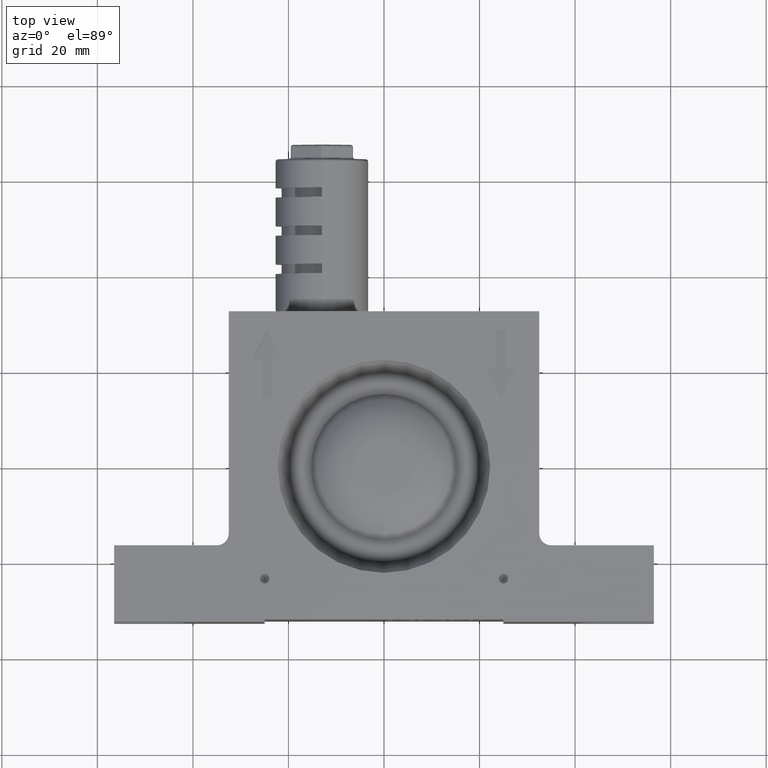
[diagram: clean part render]
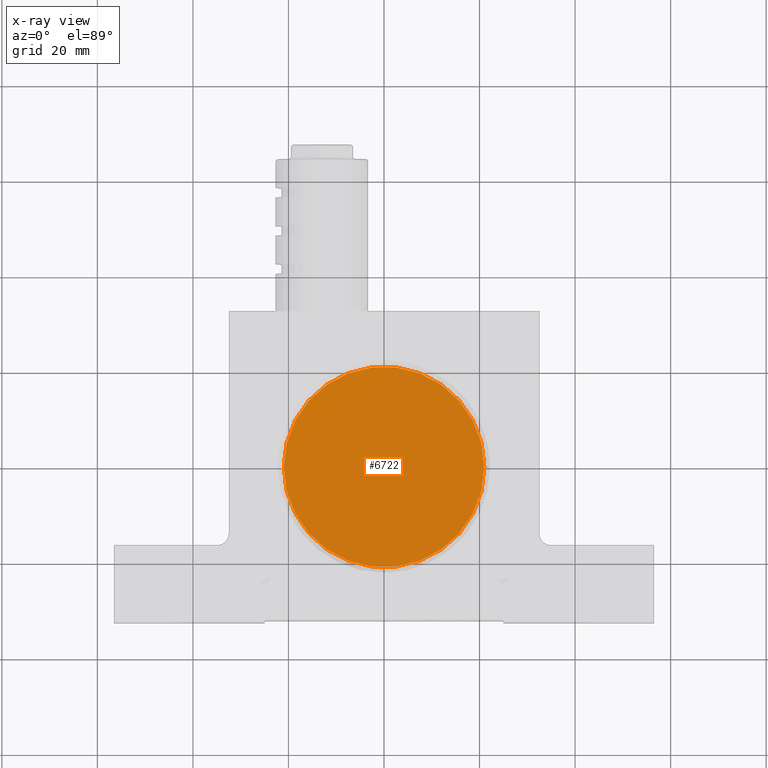
[diagram: x-ray — body ghosted, one internal face saturated and labeled with its STEP entity id]
A machine part, top view, then the same camera in x-ray: the body is ghosted and one INTERNAL B-rep face — a face not visible from any outside direction — is saturated and labeled: STEP entity #6722.
In plain terms, the highlighted planar face has unit normal (0, 0, -1).
Its self-contained STEP definition (entity closure, byte-faithful):
#146 = AXIS2_PLACEMENT_3D ( 'NONE', #2367, #3423, #4468 ) ;
#254 = FACE_OUTER_BOUND ( 'NONE', #5930, .T. ) ;
#338 = CARTESIAN_POINT ( 'NONE',  ( -21.00000000000000000, 0.0000000000000000000, 6.000000000000000000 ) ) ;
#368 = VERTEX_POINT ( 'NONE', #338 ) ;
#813 = PLANE ( 'NONE',  #4636 ) ;
#983 = EDGE_CURVE ( 'NONE', #4541, #368, #1544, .T. ) ;
#1472 = AXIS2_PLACEMENT_3D ( 'NONE', #2023, #2069, #6914 ) ;
#1544 = CIRCLE ( 'NONE', #1472, 21.00000000000000000 ) ;
#1861 = ORIENTED_EDGE ( 'NONE', *, *, #6992, .F. ) ;
#1873 = CIRCLE ( 'NONE', #146, 21.00000000000000000 ) ;
#2023 = CARTESIAN_POINT ( 'NONE',  ( 0.0000000000000000000, 0.0000000000000000000, 6.000000000000000000 ) ) ;
#2069 = DIRECTION ( 'NONE',  ( 0.0000000000000000000, 0.0000000000000000000, -1.000000000000000000 ) ) ;
#2367 = CARTESIAN_POINT ( 'NONE',  ( 0.0000000000000000000, 0.0000000000000000000, 6.000000000000000000 ) ) ;
#3423 = DIRECTION ( 'NONE',  ( 0.0000000000000000000, 0.0000000000000000000, -1.000000000000000000 ) ) ;
#4468 = DIRECTION ( 'NONE',  ( -1.000000000000000000, 0.0000000000000000000, 0.0000000000000000000 ) ) ;
#4541 = VERTEX_POINT ( 'NONE', #6411 ) ;
#4636 = AXIS2_PLACEMENT_3D ( 'NONE', #5131, #5156, #5697 ) ;
#5131 = CARTESIAN_POINT ( 'NONE',  ( 0.0000000000000000000, 9.184850993605159800E-016, 6.000000000000000000 ) ) ;
#5156 = DIRECTION ( 'NONE',  ( 0.0000000000000000000, 0.0000000000000000000, -1.000000000000000000 ) ) ;
#5697 = DIRECTION ( 'NONE',  ( -1.000000000000000000, 0.0000000000000000000, 0.0000000000000000000 ) ) ;
#5930 = EDGE_LOOP ( 'NONE', ( #1861, #6934 ) ) ;
#6411 = CARTESIAN_POINT ( 'NONE',  ( 21.00000000000000000, 2.571758278209441700E-015, 6.000000000000000000 ) ) ;
#6722 = ADVANCED_FACE ( 'NONE', ( #254 ), #813, .F. ) ;
#6914 = DIRECTION ( 'NONE',  ( -1.000000000000000000, 0.0000000000000000000, 0.0000000000000000000 ) ) ;
#6934 = ORIENTED_EDGE ( 'NONE', *, *, #983, .F. ) ;
#6992 = EDGE_CURVE ( 'NONE', #368, #4541, #1873, .T. ) ;